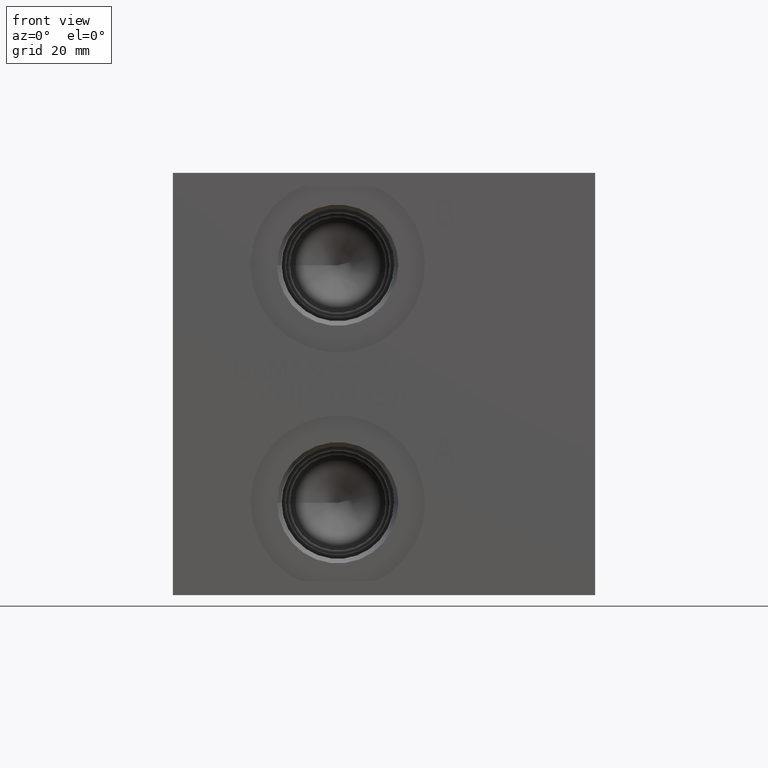
[diagram: clean part render]
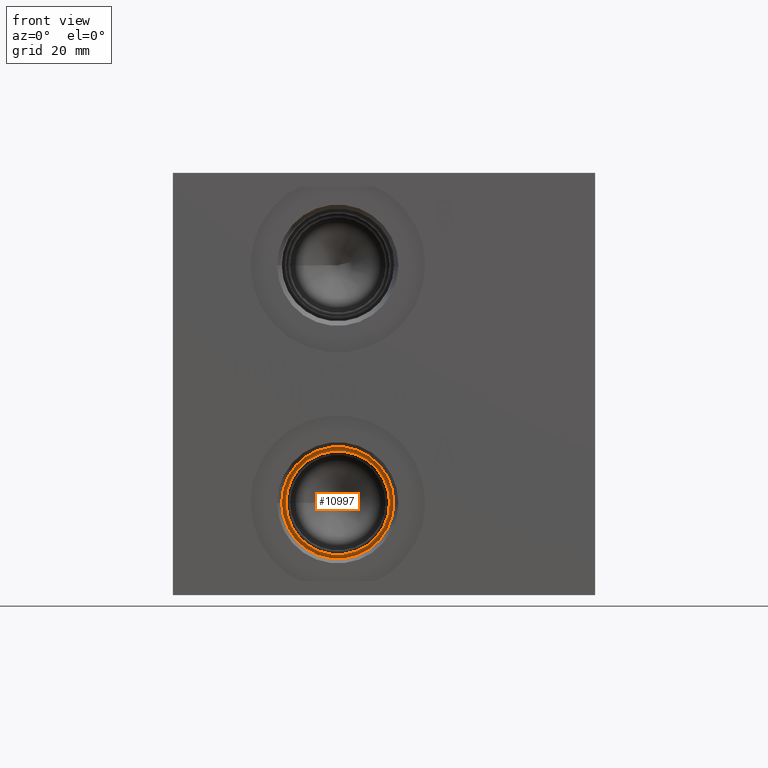
[diagram: same view with one face highlighted and labeled with its STEP entity id]
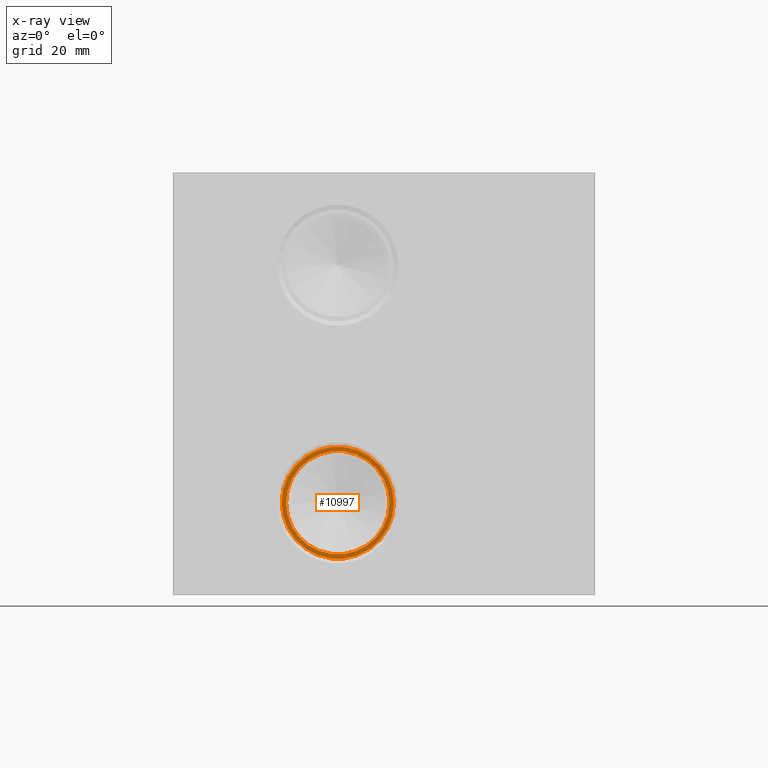
[diagram: x-ray of the same camera — body ghosted, the highlighted face saturated]
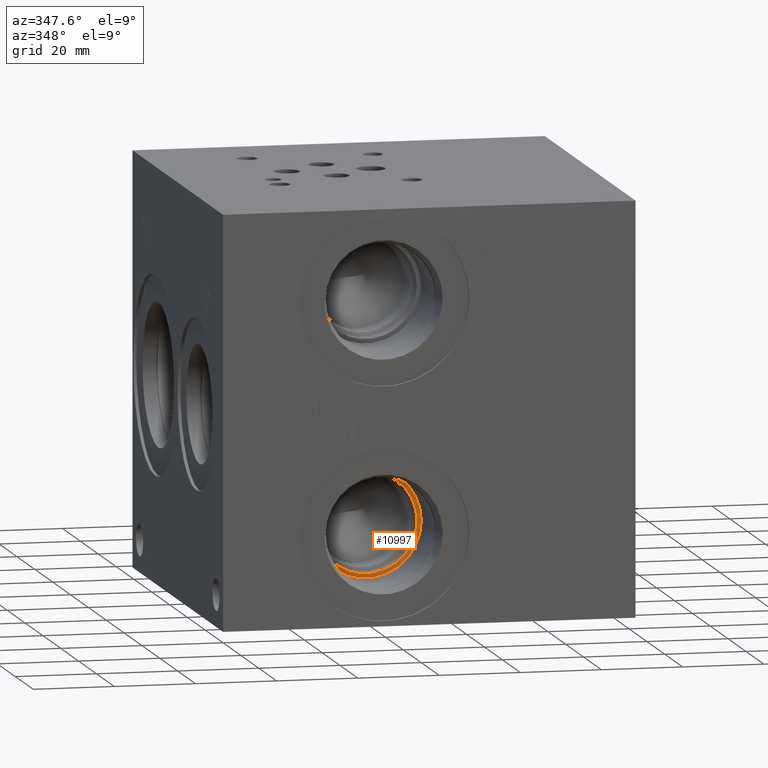
[diagram: same view with one face highlighted and labeled with its STEP entity id]
A machine part, front view. The second image highlights one B-rep face of the part: STEP entity #10997.
The next image is the same camera in x-ray: the body ghosted, the highlighted face saturated — about 0% of this face is hidden behind the body in this view.
A second angle (auxiliary view) of the same face is appended — the face is thin or edge-on in the first view.
In plain terms, the highlighted planar face has unit normal (0, -1, 0).
Its self-contained STEP definition (entity closure, byte-faithful):
#275=CIRCLE('',#11595,13.495);
#276=CIRCLE('',#11596,13.495);
#277=CIRCLE('',#11597,12.4587);
#398=FACE_BOUND('',#1996,.T.);
#1368=FACE_OUTER_BOUND('',#1995,.T.);
#1995=EDGE_LOOP('',(#9511,#9512));
#1996=EDGE_LOOP('',(#9513));
#5068=VERTEX_POINT('',#18840);
#5069=VERTEX_POINT('',#18841);
#5070=VERTEX_POINT('',#18844);
#6577=EDGE_CURVE('',#5068,#5069,#275,.T.);
#6578=EDGE_CURVE('',#5069,#5068,#276,.T.);
#6579=EDGE_CURVE('',#5070,#5070,#277,.T.);
#9511=ORIENTED_EDGE('',*,*,#6577,.T.);
#9512=ORIENTED_EDGE('',*,*,#6578,.T.);
#9513=ORIENTED_EDGE('',*,*,#6579,.F.);
#10037=PLANE('',#11594);
#10997=ADVANCED_FACE('',(#1368,#398),#10037,.T.);
#11594=AXIS2_PLACEMENT_3D('',#18839,#13770,#13771);
#11595=AXIS2_PLACEMENT_3D('',#18842,#13772,#13773);
#11596=AXIS2_PLACEMENT_3D('',#18843,#13774,#13775);
#11597=AXIS2_PLACEMENT_3D('',#18845,#13776,#13777);
#13770=DIRECTION('center_axis',(0.,-1.,0.));
#13771=DIRECTION('ref_axis',(1.,0.,0.));
#13772=DIRECTION('center_axis',(0.,-1.,0.));
#13773=DIRECTION('ref_axis',(1.,0.,0.));
#13774=DIRECTION('center_axis',(0.,-1.,0.));
#13775=DIRECTION('ref_axis',(1.,0.,0.));
#13776=DIRECTION('center_axis',(0.,-1.,0.));
#13777=DIRECTION('ref_axis',(1.,0.,0.));
#18839=CARTESIAN_POINT('Origin',(39.6748,19.8374,22.225));
#18840=CARTESIAN_POINT('',(53.1698,19.8374,22.225));
#18841=CARTESIAN_POINT('',(26.1798,19.8374,22.225));
#18842=CARTESIAN_POINT('Origin',(39.6748,19.8374,22.225));
#18843=CARTESIAN_POINT('Origin',(39.6748,19.8374,22.225));
#18844=CARTESIAN_POINT('',(27.2161,19.8374,22.225));
#18845=CARTESIAN_POINT('Origin',(39.6748,19.8374,22.225));